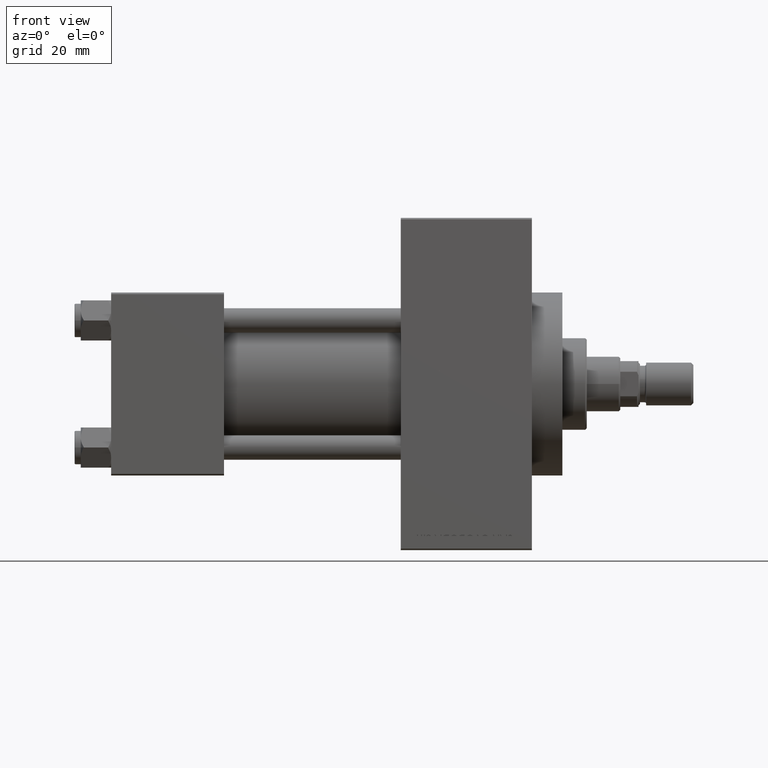
[diagram: clean part render]
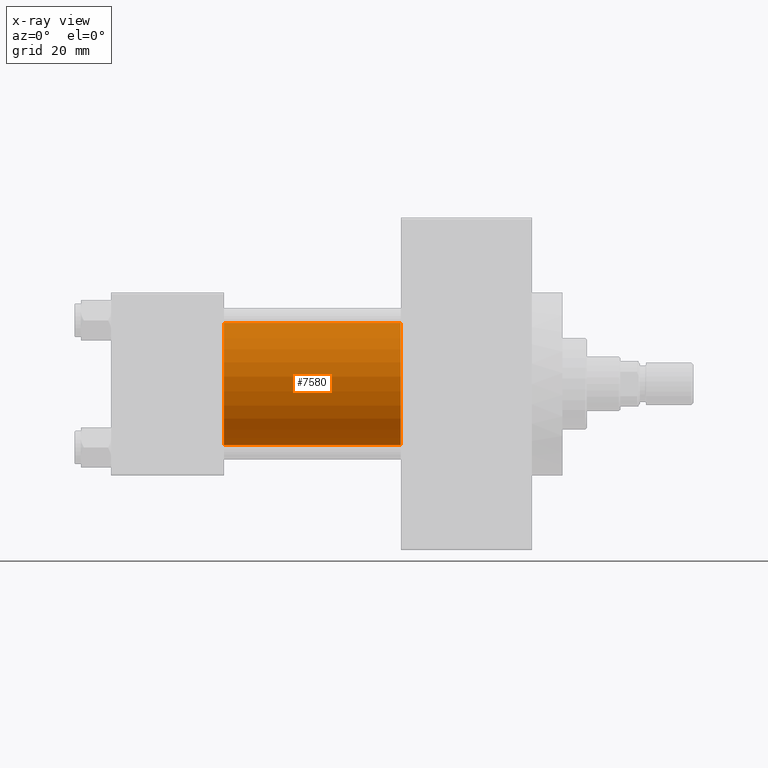
[diagram: x-ray — body ghosted, one internal face saturated and labeled with its STEP entity id]
A machine part, front view, then the same camera in x-ray: the body is ghosted and one INTERNAL B-rep face — a face not visible from any outside direction — is saturated and labeled: STEP entity #7580.
In plain terms, the highlighted cylindrical surface (partial cylindrical patch) has radius 20 mm, axis along (-1, -0, -0).
Its self-contained STEP definition (entity closure, byte-faithful):
#140 = VERTEX_POINT ( 'NONE', #5478 ) ;
#646 = AXIS2_PLACEMENT_3D ( 'NONE', #5882, #6882, #14185 ) ;
#712 = CARTESIAN_POINT ( 'NONE',  ( 37.00000000000000000, -1.527916156705046464E-16, -20.00000000000000000 ) ) ;
#853 = ORIENTED_EDGE ( 'NONE', *, *, #22225, .F. ) ;
#1160 = VECTOR ( 'NONE', #45102, 1000.000000000000000 ) ;
#1438 = CIRCLE ( 'NONE', #646, 20.00000000000000000 ) ;
#2235 = CYLINDRICAL_SURFACE ( 'NONE', #47392, 20.00000000000000000 ) ;
#3870 = EDGE_CURVE ( 'NONE', #48599, #30598, #1438, .T. ) ;
#4464 = LINE ( 'NONE', #19792, #19864 ) ;
#5478 = CARTESIAN_POINT ( 'NONE',  ( 37.00000000000000000, -2.602085213965210642E-15, 20.00000000000000000 ) ) ;
#5882 = CARTESIAN_POINT ( 'NONE',  ( 95.00000000000000000, -2.602085213965210642E-15, 0.000000000000000000 ) ) ;
#6307 = CIRCLE ( 'NONE', #8696, 20.00000000000000000 ) ;
#6882 = DIRECTION ( 'NONE',  ( 1.000000000000000000, 0.000000000000000000, 0.000000000000000000 ) ) ;
#7580 = ADVANCED_FACE ( 'NONE', ( #48782 ), #2235, .F. ) ;
#7735 = DIRECTION ( 'NONE',  ( -1.000000000000000000, -0.000000000000000000, -0.000000000000000000 ) ) ;
#8696 = AXIS2_PLACEMENT_3D ( 'NONE', #39828, #31782, #20916 ) ;
#10062 = EDGE_CURVE ( 'NONE', #30598, #29744, #44857, .T. ) ;
#10636 = ORIENTED_EDGE ( 'NONE', *, *, #3870, .T. ) ;
#14185 = DIRECTION ( 'NONE',  ( 0.000000000000000000, 0.000000000000000000, -1.000000000000000000 ) ) ;
#14310 = DIRECTION ( 'NONE',  ( -1.000000000000000000, -0.000000000000000000, -0.000000000000000000 ) ) ;
#17438 = CARTESIAN_POINT ( 'NONE',  ( 95.00000000000000000, -2.602085213965210642E-15, 20.00000000000000000 ) ) ;
#19792 = CARTESIAN_POINT ( 'NONE',  ( 95.00000000000000000, -2.602085213965210642E-15, 20.00000000000000000 ) ) ;
#19864 = VECTOR ( 'NONE', #7735, 1000.000000000000000 ) ;
#20512 = EDGE_CURVE ( 'NONE', #48599, #140, #4464, .T. ) ;
#20916 = DIRECTION ( 'NONE',  ( 0.000000000000000000, 0.000000000000000000, -1.000000000000000000 ) ) ;
#21091 = DIRECTION ( 'NONE',  ( 0.000000000000000000, 0.000000000000000000, 1.000000000000000000 ) ) ;
#22225 = EDGE_CURVE ( 'NONE', #140, #29744, #6307, .T. ) ;
#29431 = ORIENTED_EDGE ( 'NONE', *, *, #20512, .F. ) ;
#29744 = VERTEX_POINT ( 'NONE', #712 ) ;
#30598 = VERTEX_POINT ( 'NONE', #39541 ) ;
#31782 = DIRECTION ( 'NONE',  ( 1.000000000000000000, 0.000000000000000000, 0.000000000000000000 ) ) ;
#37743 = ORIENTED_EDGE ( 'NONE', *, *, #10062, .T. ) ;
#39541 = CARTESIAN_POINT ( 'NONE',  ( 95.00000000000000000, -1.527916156705046464E-16, -20.00000000000000000 ) ) ;
#39828 = CARTESIAN_POINT ( 'NONE',  ( 37.00000000000000000, -2.602085213965210642E-15, 0.000000000000000000 ) ) ;
#40588 = CARTESIAN_POINT ( 'NONE',  ( 95.00000000000000000, -1.527916156705046464E-16, -20.00000000000000000 ) ) ;
#42977 = EDGE_LOOP ( 'NONE', ( #10636, #37743, #853, #29431 ) ) ;
#44770 = CARTESIAN_POINT ( 'NONE',  ( 95.00000000000000000, -2.602085213965210642E-15, 0.000000000000000000 ) ) ;
#44857 = LINE ( 'NONE', #40588, #1160 ) ;
#45102 = DIRECTION ( 'NONE',  ( -1.000000000000000000, -0.000000000000000000, -0.000000000000000000 ) ) ;
#47392 = AXIS2_PLACEMENT_3D ( 'NONE', #44770, #14310, #21091 ) ;
#48599 = VERTEX_POINT ( 'NONE', #17438 ) ;
#48782 = FACE_OUTER_BOUND ( 'NONE', #42977, .T. ) ;